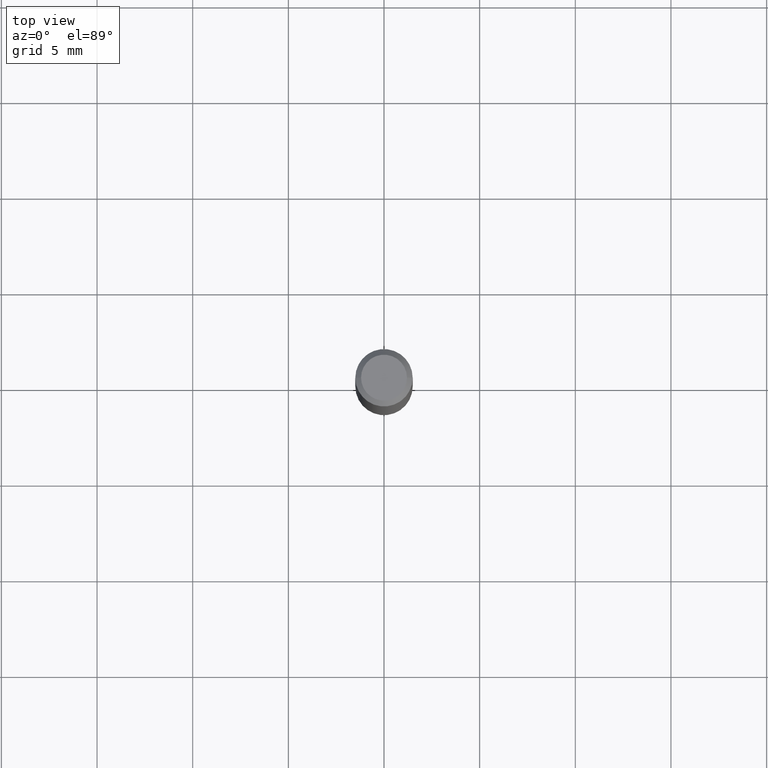
[diagram: clean part render]
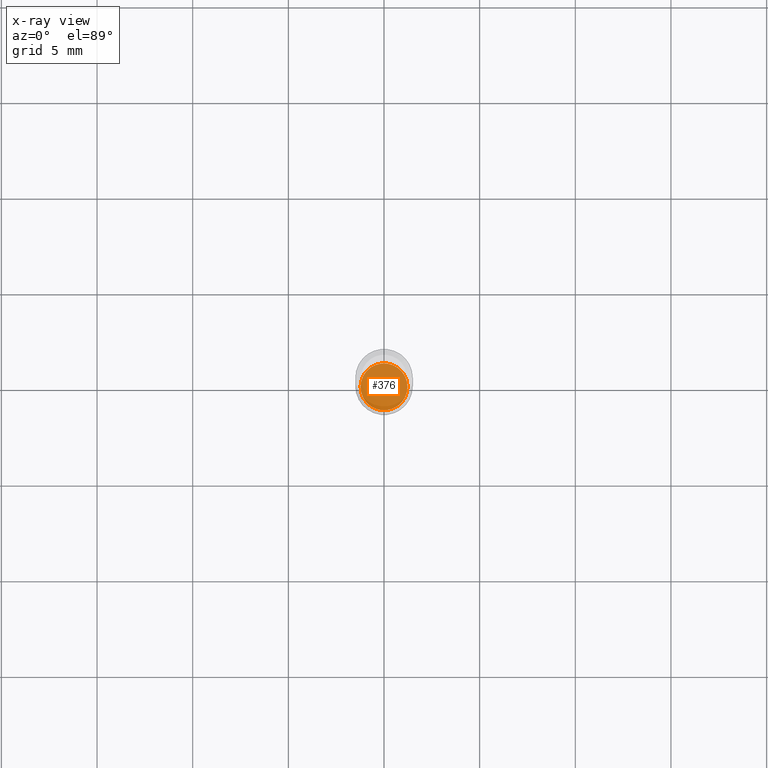
[diagram: x-ray — body ghosted, one internal face saturated and labeled with its STEP entity id]
A machine part, top view, then the same camera in x-ray: the body is ghosted and one INTERNAL B-rep face — a face not visible from any outside direction — is saturated and labeled: STEP entity #376.
In plain terms, the highlighted planar face has unit normal (-0, 0, 1).
Its self-contained STEP definition (entity closure, byte-faithful):
#3 = DIRECTION ( 'NONE',  ( -2.445468806185136597E-29, 3.491481338843145583E-15, 1.000000000000000000 ) ) ;
#28 = AXIS2_PLACEMENT_3D ( 'NONE', #163, #3, #89 ) ;
#37 = EDGE_CURVE ( 'NONE', #83, #442, #430, .T. ) ;
#61 = AXIS2_PLACEMENT_3D ( 'NONE', #245, #394, #319 ) ;
#83 = VERTEX_POINT ( 'NONE', #204 ) ;
#89 = DIRECTION ( 'NONE',  ( 1.000000000000000000, -6.982962677686264344E-15, 0.000000000000000000 ) ) ;
#105 = ORIENTED_EDGE ( 'NONE', *, *, #37, .F. ) ;
#163 = CARTESIAN_POINT ( 'NONE',  ( 2.676565608369632355E-29, -3.821426325363822773E-15, -1.094500000000000028 ) ) ;
#199 = PLANE ( 'NONE',  #247 ) ;
#204 = CARTESIAN_POINT ( 'NONE',  ( 0.04830000000000000265, -4.158703422696069885E-15, -1.094500000000000028 ) ) ;
#236 = CARTESIAN_POINT ( 'NONE',  ( -0.04830000000000000265, -3.475584956817583114E-15, -1.094500000000000028 ) ) ;
#239 = CIRCLE ( 'NONE', #28, 0.04830000000000000265 ) ;
#245 = CARTESIAN_POINT ( 'NONE',  ( 2.676565608369632355E-29, -3.821426325363822773E-15, -1.094500000000000028 ) ) ;
#247 = AXIS2_PLACEMENT_3D ( 'NONE', #316, #386, #351 ) ;
#302 = EDGE_LOOP ( 'NONE', ( #105, #373 ) ) ;
#316 = CARTESIAN_POINT ( 'NONE',  ( 5.151668837566053307E-30, -6.916672318185288609E-15, -1.094500000000000028 ) ) ;
#319 = DIRECTION ( 'NONE',  ( 1.000000000000000000, -6.982962677686264344E-15, 0.000000000000000000 ) ) ;
#351 = DIRECTION ( 'NONE',  ( 1.000000000000000000, -6.982962677686265922E-15, 4.876176775795935793E-29 ) ) ;
#373 = ORIENTED_EDGE ( 'NONE', *, *, #464, .F. ) ;
#376 = ADVANCED_FACE ( 'NONE', ( #379 ), #199, .F. ) ;
#379 = FACE_OUTER_BOUND ( 'NONE', #302, .T. ) ;
#386 = DIRECTION ( 'NONE',  ( -2.438088387897960049E-29, 3.491481338843145188E-15, 1.000000000000000000 ) ) ;
#394 = DIRECTION ( 'NONE',  ( -2.445468806185136597E-29, 3.491481338843145583E-15, 1.000000000000000000 ) ) ;
#430 = CIRCLE ( 'NONE', #61, 0.04830000000000000265 ) ;
#442 = VERTEX_POINT ( 'NONE', #236 ) ;
#464 = EDGE_CURVE ( 'NONE', #442, #83, #239, .T. ) ;